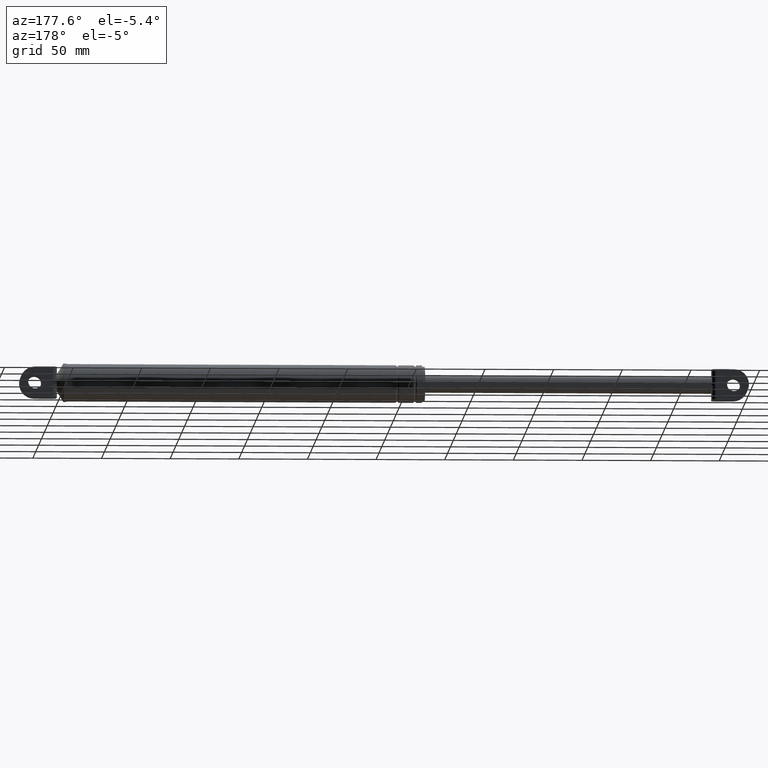
[diagram: clean part render]
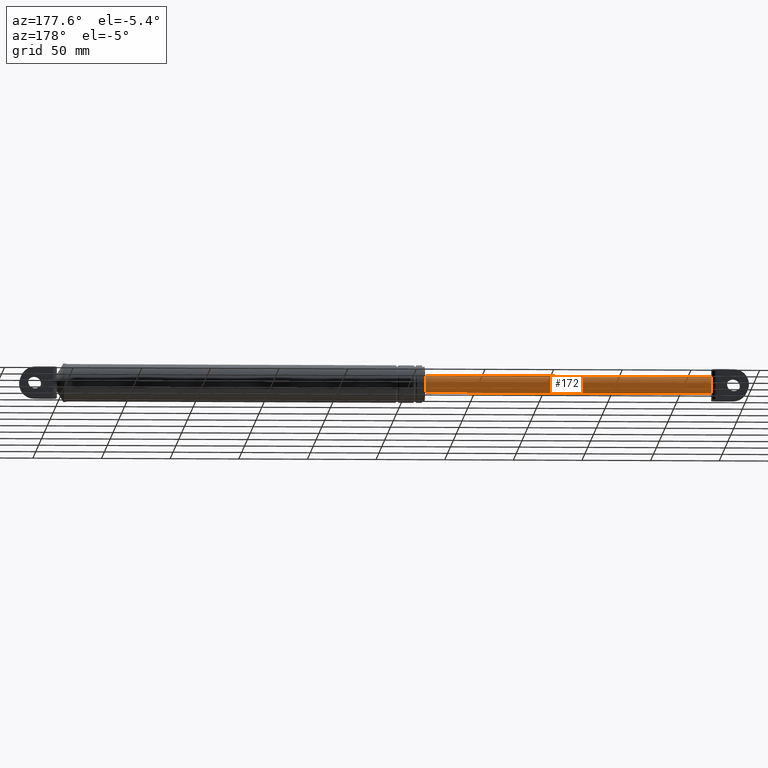
[diagram: same view with one face highlighted and labeled with its STEP entity id]
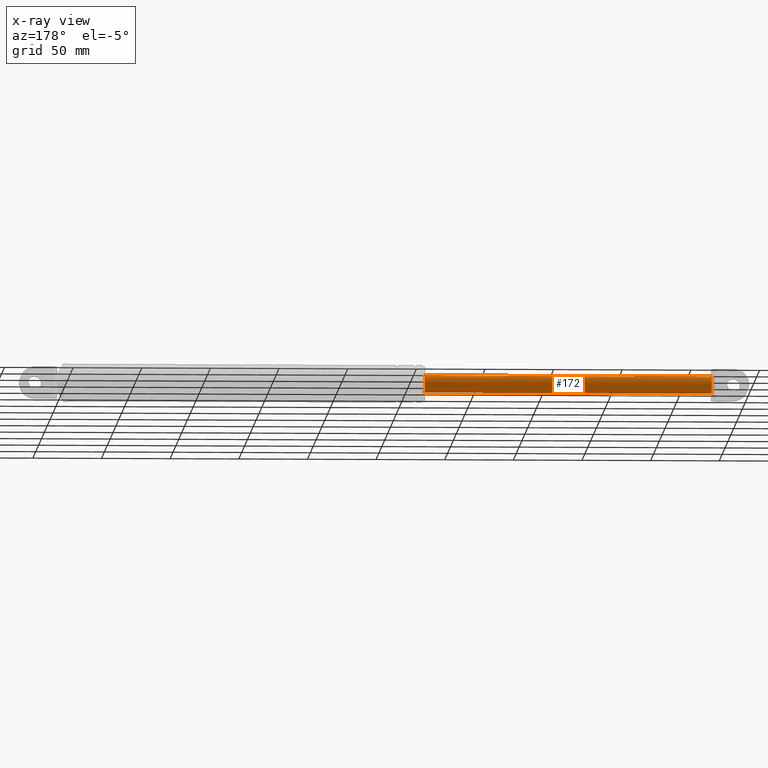
[diagram: x-ray of the same camera — body ghosted, the highlighted face saturated]
A machine part, auxiliary view. The second image highlights one B-rep face of the part: STEP entity #172.
The next image is the same camera in x-ray: the body ghosted, the highlighted face saturated — about 0% of this face is hidden behind the body in this view.
In plain terms, the highlighted cylindrical surface (edge-blend (fillet) strip) has radius 6.25 mm, axis along (1, 0, 0).
Its self-contained STEP definition (entity closure, byte-faithful):
#172=ADVANCED_FACE('',(#787),#786,.T.);
#786=CYLINDRICAL_SURFACE('',#1379,6.25000000000E+000);
#787=FACE_OUTER_BOUND('',#1380,.T.);
#1376=CARTESIAN_POINT('',(0.00000000000E+000,0.00000000000E+000,1.88159193491E+002));
#1377=DIRECTION('',(1.00000000000E+000,-0.00000000000E+000,-0.00000000000E+000));
#1378=DIRECTION('',(-0.00000000000E+000,-0.00000000000E+000,-1.00000000000E+000));
#1379=AXIS2_PLACEMENT_3D('',#1376,#1377,#1378);
#1380=EDGE_LOOP('',(#1688,#1689,#1690,#1691,#1692,#1693));
#1688=ORIENTED_EDGE('',*,*,#1853,.T.);
#1689=ORIENTED_EDGE('',*,*,#1860,.F.);
#1690=ORIENTED_EDGE('',*,*,#1841,.F.);
#1691=ORIENTED_EDGE('',*,*,#1823,.F.);
#1692=ORIENTED_EDGE('',*,*,#1833,.F.);
#1693=ORIENTED_EDGE('',*,*,#1861,.T.);
#1823=EDGE_CURVE('',#2625,#2618,#2632,.T.);
#1833=EDGE_CURVE('',#2691,#2625,#2698,.T.);
#1841=EDGE_CURVE('',#2618,#2752,#2753,.T.);
#1853=EDGE_CURVE('',#2823,#2822,#2830,.T.);
#1860=EDGE_CURVE('',#2752,#2822,#2874,.T.);
#1861=EDGE_CURVE('',#2691,#2823,#2880,.T.);
#2618=VERTEX_POINT('',#3392);
#2625=VERTEX_POINT('',#3397);
#2632=CIRCLE('',#3405,6.25000000000E+000);
#2691=VERTEX_POINT('',#3438);
#2698=CIRCLE('',#3446,6.25000000000E+000);
#2752=VERTEX_POINT('',#3477);
#2753=CIRCLE('',#3481,6.25000000000E+000);
#2822=VERTEX_POINT('',#3517);
#2823=VERTEX_POINT('',#3518);
#2830=CIRCLE('',#3526,6.25000000000E+000);
#2874=(BOUNDED_CURVE() B_SPLINE_CURVE(1,(#3548,#3549),.UNSPECIFIED.,.F.,.F.) B_SPLINE_CURVE_WITH_KNOTS((2,2),(4.36681224035E-002,9.56331877764E-001),.UNSPECIFIED.) CURVE() GEOMETRIC_REPRESENTATION_ITEM() RATIONAL_B_SPLINE_CURVE((1.00000000000E+000,1.00000000000E+000)) REPRESENTATION_ITEM('') );
#2880=(BOUNDED_CURVE() B_SPLINE_CURVE(1,(#3550,#3551),.UNSPECIFIED.,.F.,.F.) B_SPLINE_CURVE_WITH_KNOTS((2,2),(4.36681222707E-002,9.56331877729E-001),.UNSPECIFIED.) CURVE() GEOMETRIC_REPRESENTATION_ITEM() RATIONAL_B_SPLINE_CURVE((7.50000000000E-001,7.50000000000E-001)) REPRESENTATION_ITEM('') );
#3392=CARTESIAN_POINT('',(-2.96213686761E+001,5.49999700000E+000,1.85190602411E+002));
#3397=CARTESIAN_POINT('',(-2.96213686761E+001,5.49999700000E+000,1.91127784570E+002));
#3402=CARTESIAN_POINT('',(-2.96213686761E+001,0.00000000000E+000,1.88159193491E+002));
#3403=DIRECTION('',(-1.00000000000E+000,0.00000000000E+000,0.00000000000E+000));
#3404=DIRECTION('',(-0.00000000000E+000,-0.00000000000E+000,-1.00000000000E+000));
#3405=AXIS2_PLACEMENT_3D('',#3402,#3403,#3404);
#3438=CARTESIAN_POINT('',(-2.96213686761E+001,7.89135234288E-007,1.94409193491E+002));
#3443=CARTESIAN_POINT('',(-2.96213686761E+001,0.00000000000E+000,1.88159193491E+002));
#3444=DIRECTION('',(-1.00000000000E+000,0.00000000000E+000,0.00000000000E+000));
#3445=DIRECTION('',(-0.00000000000E+000,-0.00000000000E+000,-1.00000000000E+000));
#3446=AXIS2_PLACEMENT_3D('',#3443,#3444,#3445);
#3477=CARTESIAN_POINT('',(-2.96213686761E+001,4.27302988802E-012,1.81909193491E+002));
#3478=CARTESIAN_POINT('',(-2.96213686761E+001,0.00000000000E+000,1.88159193491E+002));
#3479=DIRECTION('',(-1.00000000000E+000,0.00000000000E+000,0.00000000000E+000));
#3480=DIRECTION('',(-0.00000000000E+000,8.79999520000E-001,-4.74974572793E-001));
#3481=AXIS2_PLACEMENT_3D('',#3478,#3479,#3480);
#3517=CARTESIAN_POINT('',(1.79378631324E+002,0.00000000000E+000,1.81909193491E+002));
#3518=CARTESIAN_POINT('',(1.79378631324E+002,0.00000000000E+000,1.94409193491E+002));
#3523=CARTESIAN_POINT('',(1.79378631324E+002,0.00000000000E+000,1.88159193491E+002));
#3524=DIRECTION('',(-1.00000000000E+000,0.00000000000E+000,0.00000000000E+000));
#3525=DIRECTION('',(0.00000000000E+000,-1.22460635382E-016,1.00000000000E+000));
#3526=AXIS2_PLACEMENT_3D('',#3523,#3524,#3525);
#3548=CARTESIAN_POINT('',(-2.96213686457E+001,0.00000000000E+000,1.81909193491E+002));
#3549=CARTESIAN_POINT('',(1.79378631332E+002,0.00000000000E+000,1.81909193491E+002));
#3550=CARTESIAN_POINT('',(-2.96213686761E+001,0.00000000000E+000,1.94409193491E+002));
#3551=CARTESIAN_POINT('',(1.79378631324E+002,0.00000000000E+000,1.94409193491E+002));